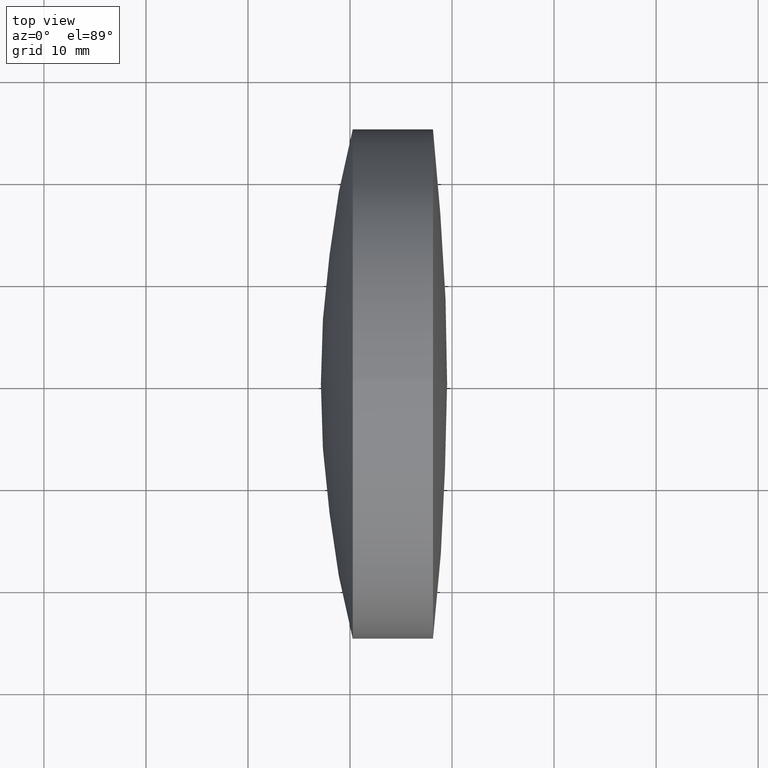
[diagram: clean part render]
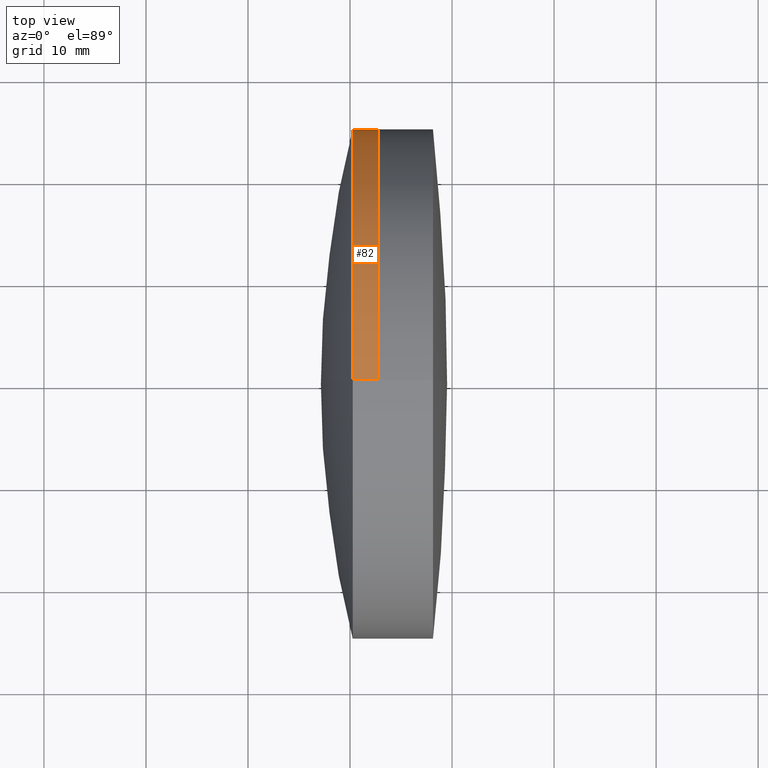
[diagram: same view with one face highlighted and labeled with its STEP entity id]
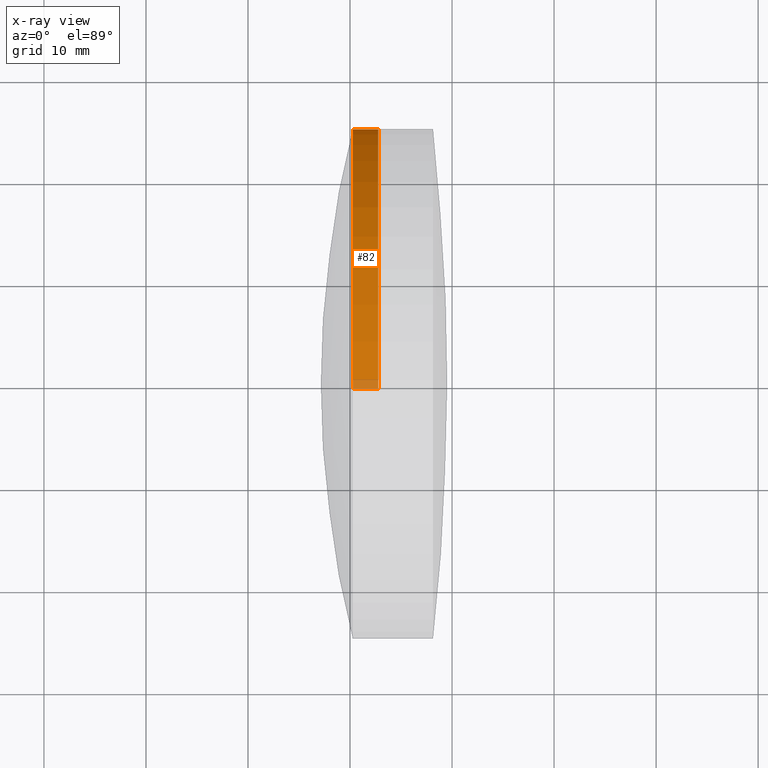
[diagram: x-ray of the same camera — body ghosted, the highlighted face saturated]
A machine part, top view. The second image highlights one B-rep face of the part: STEP entity #82.
The next image is the same camera in x-ray: the body ghosted, the highlighted face saturated — about 3% of this face is hidden behind the body in this view.
In plain terms, the highlighted cylindrical surface (partial cylindrical patch) has radius 25 mm, axis along (-1, -0, -0).
Its self-contained STEP definition (entity closure, byte-faithful):
#2 = CYLINDRICAL_SURFACE ( 'NONE', #263, 24.99999999999997500 ) ;
#4 = DIRECTION ( 'NONE',  ( 0.0000000000000000000, 0.0000000000000000000, 1.000000000000000000 ) ) ;
#15 = CARTESIAN_POINT ( 'NONE',  ( 124.5233095260452400, 0.0000000000000000000, 24.99999999999997500 ) ) ;
#25 = FACE_OUTER_BOUND ( 'NONE', #197, .T. ) ;
#43 = EDGE_CURVE ( 'NONE', #144, #280, #223, .T. ) ;
#50 = DIRECTION ( 'NONE',  ( -1.000000000000000000, -0.0000000000000000000, -0.0000000000000000000 ) ) ;
#69 = VECTOR ( 'NONE', #206, 1000.000000000000000 ) ;
#82 = ADVANCED_FACE ( 'NONE', ( #25 ), #2, .T. ) ;
#85 = ORIENTED_EDGE ( 'NONE', *, *, #43, .F. ) ;
#88 = CIRCLE ( 'NONE', #291, 24.99999999999997500 ) ;
#106 = VERTEX_POINT ( 'NONE', #188 ) ;
#107 = CARTESIAN_POINT ( 'NONE',  ( 124.5233095260452400, 3.061616997868379900E-015, -24.99999999999997500 ) ) ;
#113 = DIRECTION ( 'NONE',  ( -1.000000000000000000, -0.0000000000000000000, -0.0000000000000000000 ) ) ;
#124 = CARTESIAN_POINT ( 'NONE',  ( 230.2651347242161800, 0.0000000000000000000, 24.99999999999996800 ) ) ;
#128 = VECTOR ( 'NONE', #113, 1000.000000000000000 ) ;
#141 = ORIENTED_EDGE ( 'NONE', *, *, #265, .F. ) ;
#144 = VERTEX_POINT ( 'NONE', #234 ) ;
#153 = CARTESIAN_POINT ( 'NONE',  ( 232.7655238104919400, 3.061616997868379500E-015, -24.99999999999997200 ) ) ;
#160 = CARTESIAN_POINT ( 'NONE',  ( 230.2651347242161800, 0.0000000000000000000, 0.0000000000000000000 ) ) ;
#162 = DIRECTION ( 'NONE',  ( -1.000000000000000000, -0.0000000000000000000, -0.0000000000000000000 ) ) ;
#175 = DIRECTION ( 'NONE',  ( 0.0000000000000000000, 0.0000000000000000000, 1.000000000000000000 ) ) ;
#176 = ORIENTED_EDGE ( 'NONE', *, *, #224, .T. ) ;
#188 = CARTESIAN_POINT ( 'NONE',  ( 230.2651347242161800, 3.061616997868379100E-015, -25.00000000000005000 ) ) ;
#197 = EDGE_LOOP ( 'NONE', ( #292, #176, #141, #85 ) ) ;
#206 = DIRECTION ( 'NONE',  ( -1.000000000000000000, -0.0000000000000000000, -0.0000000000000000000 ) ) ;
#223 = LINE ( 'NONE', #15, #69 ) ;
#224 = EDGE_CURVE ( 'NONE', #308, #106, #237, .T. ) ;
#229 = CARTESIAN_POINT ( 'NONE',  ( 232.7655238104919400, 0.0000000000000000000, 0.0000000000000000000 ) ) ;
#234 = CARTESIAN_POINT ( 'NONE',  ( 232.7655238104919400, 0.0000000000000000000, 24.99999999999997200 ) ) ;
#237 = LINE ( 'NONE', #107, #128 ) ;
#240 = DIRECTION ( 'NONE',  ( 0.0000000000000000000, 0.0000000000000000000, 1.000000000000000000 ) ) ;
#263 = AXIS2_PLACEMENT_3D ( 'NONE', #284, #267, #175 ) ;
#265 = EDGE_CURVE ( 'NONE', #280, #106, #88, .T. ) ;
#267 = DIRECTION ( 'NONE',  ( -1.000000000000000000, -0.0000000000000000000, -0.0000000000000000000 ) ) ;
#280 = VERTEX_POINT ( 'NONE', #124 ) ;
#284 = CARTESIAN_POINT ( 'NONE',  ( 124.5233095260452400, 0.0000000000000000000, 0.0000000000000000000 ) ) ;
#291 = AXIS2_PLACEMENT_3D ( 'NONE', #160, #162, #240 ) ;
#292 = ORIENTED_EDGE ( 'NONE', *, *, #319, .T. ) ;
#308 = VERTEX_POINT ( 'NONE', #153 ) ;
#312 = CIRCLE ( 'NONE', #313, 24.99999999999997200 ) ;
#313 = AXIS2_PLACEMENT_3D ( 'NONE', #229, #50, #4 ) ;
#319 = EDGE_CURVE ( 'NONE', #144, #308, #312, .T. ) ;